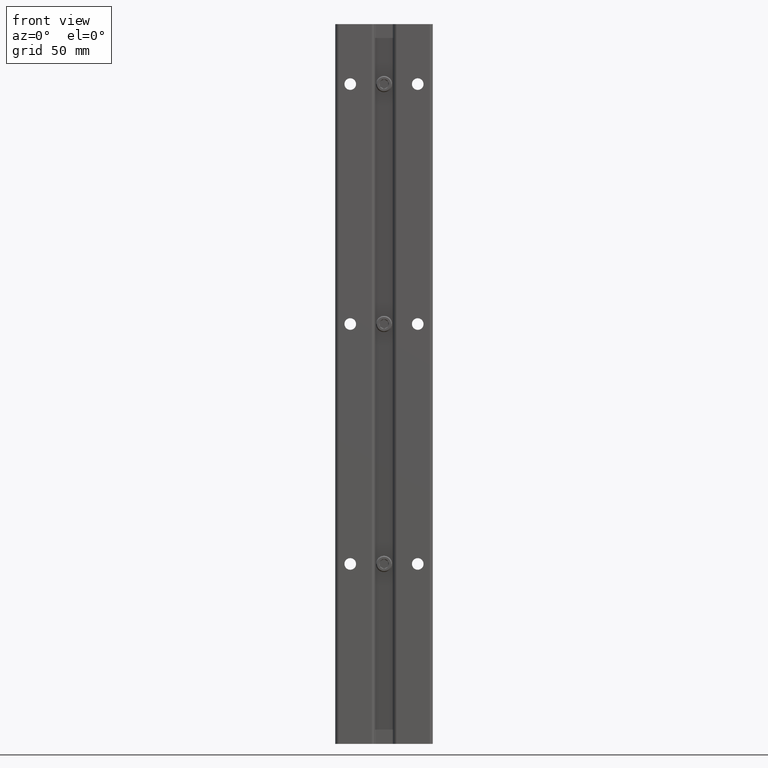
[diagram: clean part render]
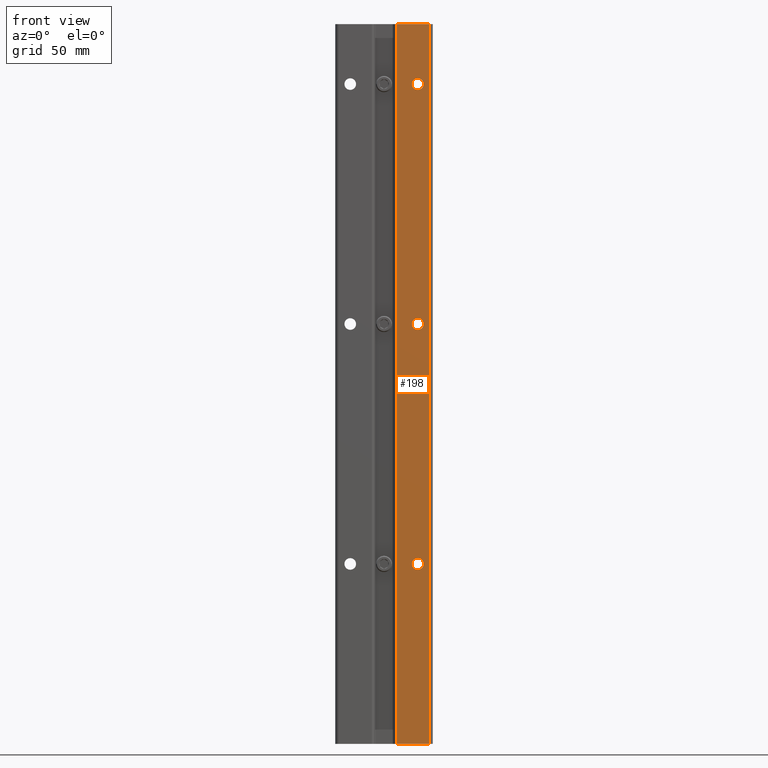
[diagram: same view with one face highlighted and labeled with its STEP entity id]
A machine part, front view. The second image highlights one B-rep face of the part: STEP entity #198.
In plain terms, the highlighted planar face has unit normal (0, 1, 0).
Its self-contained STEP definition (entity closure, byte-faithful):
#42 = EDGE_CURVE ( 'NONE', #1702, #2093, #156, .T. ) ;
#48 = DIRECTION ( 'NONE',  ( 0.000000000000000000, 1.000000000000000000, 0.000000000000000000 ) ) ;
#128 = CARTESIAN_POINT ( 'NONE',  ( 0.7630796188424994186, 0.000000000000000000, 0.000000000000000000 ) ) ;
#156 = CIRCLE ( 'NONE', #7254, 0.09700000000000008615 ) ;
#157 = ORIENTED_EDGE ( 'NONE', *, *, #3744, .T. ) ;
#198 = ADVANCED_FACE ( 'NONE', ( #2869, #4701, #4046, #2289 ), #7090, .F. ) ;
#386 = AXIS2_PLACEMENT_3D ( 'NONE', #4749, #7716, #5271 ) ;
#546 = CARTESIAN_POINT ( 'NONE',  ( 0.5625000000000001110, 0.000000000000000000, -4.903000000000000469 ) ) ;
#557 = DIRECTION ( 'NONE',  ( 0.000000000000000000, 1.000000000000000000, 0.000000000000000000 ) ) ;
#646 = EDGE_LOOP ( 'NONE', ( #157, #3742 ) ) ;
#670 = EDGE_LOOP ( 'NONE', ( #3563, #7683 ) ) ;
#727 = DIRECTION ( 'NONE',  ( 0.000000000000000000, 1.000000000000000000, 0.000000000000000000 ) ) ;
#810 = CIRCLE ( 'NONE', #5284, 0.09700000000000008615 ) ;
#840 = ORIENTED_EDGE ( 'NONE', *, *, #1683, .T. ) ;
#845 = AXIS2_PLACEMENT_3D ( 'NONE', #6183, #727, #3698 ) ;
#893 = AXIS2_PLACEMENT_3D ( 'NONE', #6229, #3174, #5022 ) ;
#999 = ORIENTED_EDGE ( 'NONE', *, *, #6194, .F. ) ;
#1008 = ORIENTED_EDGE ( 'NONE', *, *, #4527, .F. ) ;
#1121 = CARTESIAN_POINT ( 'NONE',  ( 0.7630796188424994186, -5.805176986536559586E-16, -13.83356500330709338 ) ) ;
#1128 = DIRECTION ( 'NONE',  ( 0.000000000000000000, -0.000000000000000000, 1.000000000000000000 ) ) ;
#1275 = LINE ( 'NONE', #5600, #3616 ) ;
#1654 = CIRCLE ( 'NONE', #6618, 0.09699999999999954492 ) ;
#1669 = DIRECTION ( 'NONE',  ( 0.000000000000000000, 1.000000000000000000, 0.000000000000000000 ) ) ;
#1683 = EDGE_CURVE ( 'NONE', #5743, #4560, #1922, .T. ) ;
#1701 = CARTESIAN_POINT ( 'NONE',  ( 0.5625000000000001110, 0.000000000000000000, -1.096999999999999753 ) ) ;
#1702 = VERTEX_POINT ( 'NONE', #546 ) ;
#1922 = LINE ( 'NONE', #1121, #6567 ) ;
#2093 = VERTEX_POINT ( 'NONE', #4506 ) ;
#2115 = EDGE_CURVE ( 'NONE', #6603, #5573, #6822, .T. ) ;
#2289 = FACE_OUTER_BOUND ( 'NONE', #4757, .T. ) ;
#2638 = CARTESIAN_POINT ( 'NONE',  ( 0.7630796188424994186, -5.805176986536559586E-16, -12.00000000000000178 ) ) ;
#2772 = CARTESIAN_POINT ( 'NONE',  ( 0.5625000000000001110, 0.000000000000000000, -8.999999999999998224 ) ) ;
#2822 = LINE ( 'NONE', #3557, #5930 ) ;
#2869 = FACE_BOUND ( 'NONE', #646, .T. ) ;
#3022 = EDGE_CURVE ( 'NONE', #4674, #3217, #5869, .T. ) ;
#3157 = DIRECTION ( 'NONE',  ( 0.000000000000000000, 0.000000000000000000, 1.000000000000000000 ) ) ;
#3174 = DIRECTION ( 'NONE',  ( 0.000000000000000000, 1.000000000000000000, 0.000000000000000000 ) ) ;
#3217 = VERTEX_POINT ( 'NONE', #5330 ) ;
#3290 = LINE ( 'NONE', #5245, #5504 ) ;
#3363 = EDGE_CURVE ( 'NONE', #5573, #6603, #3943, .T. ) ;
#3469 = EDGE_CURVE ( 'NONE', #3217, #4674, #1654, .T. ) ;
#3525 = CARTESIAN_POINT ( 'NONE',  ( 0.5625000000000001110, 0.000000000000000000, -0.9029999999999998028 ) ) ;
#3557 = CARTESIAN_POINT ( 'NONE',  ( -2.500000000000000000, 0.000000000000000000, 0.000000000000000000 ) ) ;
#3563 = ORIENTED_EDGE ( 'NONE', *, *, #3363, .T. ) ;
#3577 = EDGE_LOOP ( 'NONE', ( #7627, #7192 ) ) ;
#3592 = AXIS2_PLACEMENT_3D ( 'NONE', #5422, #557, #1128 ) ;
#3616 = VECTOR ( 'NONE', #3748, 39.37007874015748143 ) ;
#3698 = DIRECTION ( 'NONE',  ( 0.000000000000000000, 0.000000000000000000, 1.000000000000000000 ) ) ;
#3742 = ORIENTED_EDGE ( 'NONE', *, *, #42, .T. ) ;
#3744 = EDGE_CURVE ( 'NONE', #2093, #1702, #810, .T. ) ;
#3748 = DIRECTION ( 'NONE',  ( -1.000000000000000000, 0.000000000000000000, 0.000000000000000000 ) ) ;
#3859 = CARTESIAN_POINT ( 'NONE',  ( 0.5625000000000001110, 0.000000000000000000, -9.096999999999997755 ) ) ;
#3943 = CIRCLE ( 'NONE', #893, 0.09699999999999994738 ) ;
#4046 = FACE_BOUND ( 'NONE', #670, .T. ) ;
#4149 = DIRECTION ( 'NONE',  ( 0.000000000000000000, 0.000000000000000000, 1.000000000000000000 ) ) ;
#4389 = CARTESIAN_POINT ( 'NONE',  ( 0.5625000000000001110, 0.000000000000000000, -5.000000000000000000 ) ) ;
#4448 = CARTESIAN_POINT ( 'NONE',  ( 0.2044203811574917540, -1.707404996040164512E-16, 0.000000000000000000 ) ) ;
#4506 = CARTESIAN_POINT ( 'NONE',  ( 0.5625000000000001110, 0.000000000000000000, -5.096999999999999531 ) ) ;
#4527 = EDGE_CURVE ( 'NONE', #5743, #6231, #1275, .T. ) ;
#4560 = VERTEX_POINT ( 'NONE', #128 ) ;
#4604 = DIRECTION ( 'NONE',  ( 0.000000000000000000, 1.000000000000000000, 0.000000000000000000 ) ) ;
#4674 = VERTEX_POINT ( 'NONE', #3859 ) ;
#4701 = FACE_BOUND ( 'NONE', #3577, .T. ) ;
#4749 = CARTESIAN_POINT ( 'NONE',  ( 0.5625000000000001110, 0.000000000000000000, -8.999999999999998224 ) ) ;
#4757 = EDGE_LOOP ( 'NONE', ( #6412, #999, #1008, #840 ) ) ;
#4971 = EDGE_CURVE ( 'NONE', #5237, #4560, #2822, .T. ) ;
#5022 = DIRECTION ( 'NONE',  ( 0.000000000000000000, 0.000000000000000000, 1.000000000000000000 ) ) ;
#5237 = VERTEX_POINT ( 'NONE', #4448 ) ;
#5245 = CARTESIAN_POINT ( 'NONE',  ( 0.2044203811574923924, -5.805176986536559586E-16, -13.83356500330709338 ) ) ;
#5271 = DIRECTION ( 'NONE',  ( 0.000000000000000000, 0.000000000000000000, 1.000000000000000000 ) ) ;
#5284 = AXIS2_PLACEMENT_3D ( 'NONE', #5345, #1669, #7844 ) ;
#5330 = CARTESIAN_POINT ( 'NONE',  ( 0.5625000000000001110, 0.000000000000000000, -8.902999999999998693 ) ) ;
#5345 = CARTESIAN_POINT ( 'NONE',  ( 0.5625000000000001110, 0.000000000000000000, -5.000000000000000000 ) ) ;
#5422 = CARTESIAN_POINT ( 'NONE',  ( -2.500000000000000000, 0.000000000000000000, 0.1250000000000000000 ) ) ;
#5504 = VECTOR ( 'NONE', #4149, 39.37007874015748143 ) ;
#5573 = VERTEX_POINT ( 'NONE', #1701 ) ;
#5600 = CARTESIAN_POINT ( 'NONE',  ( 0.2044203811574923924, -5.805176986536559586E-16, -12.00000000000000178 ) ) ;
#5743 = VERTEX_POINT ( 'NONE', #2638 ) ;
#5869 = CIRCLE ( 'NONE', #386, 0.09699999999999954492 ) ;
#5930 = VECTOR ( 'NONE', #6448, 39.37007874015748143 ) ;
#5998 = DIRECTION ( 'NONE',  ( 0.000000000000000000, 0.000000000000000000, 1.000000000000000000 ) ) ;
#6183 = CARTESIAN_POINT ( 'NONE',  ( 0.5625000000000001110, 0.000000000000000000, -0.9999999999999996669 ) ) ;
#6194 = EDGE_CURVE ( 'NONE', #6231, #5237, #3290, .T. ) ;
#6229 = CARTESIAN_POINT ( 'NONE',  ( 0.5625000000000001110, 0.000000000000000000, -0.9999999999999996669 ) ) ;
#6231 = VERTEX_POINT ( 'NONE', #7577 ) ;
#6412 = ORIENTED_EDGE ( 'NONE', *, *, #4971, .F. ) ;
#6448 = DIRECTION ( 'NONE',  ( 1.000000000000000000, 0.000000000000000000, 0.000000000000000000 ) ) ;
#6567 = VECTOR ( 'NONE', #5998, 39.37007874015748143 ) ;
#6603 = VERTEX_POINT ( 'NONE', #3525 ) ;
#6618 = AXIS2_PLACEMENT_3D ( 'NONE', #2772, #4604, #7001 ) ;
#6822 = CIRCLE ( 'NONE', #845, 0.09699999999999994738 ) ;
#7001 = DIRECTION ( 'NONE',  ( 0.000000000000000000, 0.000000000000000000, 1.000000000000000000 ) ) ;
#7090 = PLANE ( 'NONE',  #3592 ) ;
#7192 = ORIENTED_EDGE ( 'NONE', *, *, #3469, .T. ) ;
#7254 = AXIS2_PLACEMENT_3D ( 'NONE', #4389, #48, #3157 ) ;
#7577 = CARTESIAN_POINT ( 'NONE',  ( 0.2044203811574923924, -5.757156221022929292E-16, -12.00000000000000178 ) ) ;
#7627 = ORIENTED_EDGE ( 'NONE', *, *, #3022, .T. ) ;
#7683 = ORIENTED_EDGE ( 'NONE', *, *, #2115, .T. ) ;
#7716 = DIRECTION ( 'NONE',  ( 0.000000000000000000, 1.000000000000000000, 0.000000000000000000 ) ) ;
#7844 = DIRECTION ( 'NONE',  ( 0.000000000000000000, 0.000000000000000000, 1.000000000000000000 ) ) ;